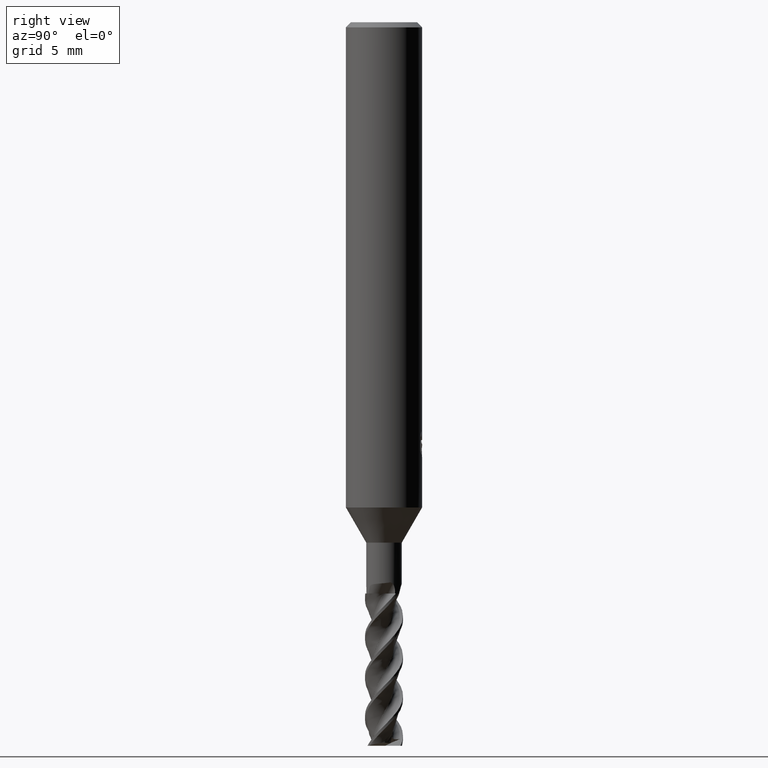
[diagram: clean part render]
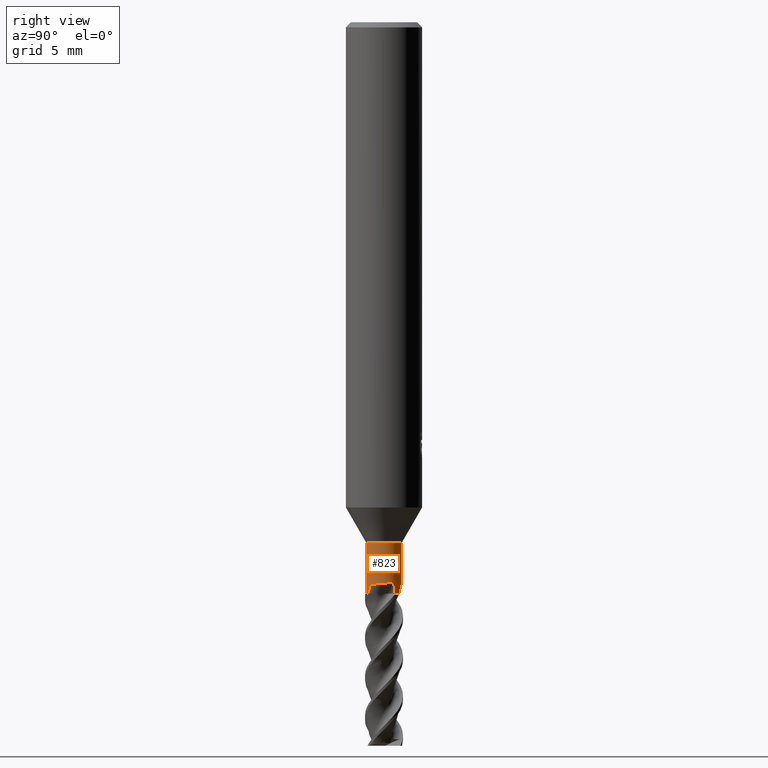
[diagram: same view with one face highlighted and labeled with its STEP entity id]
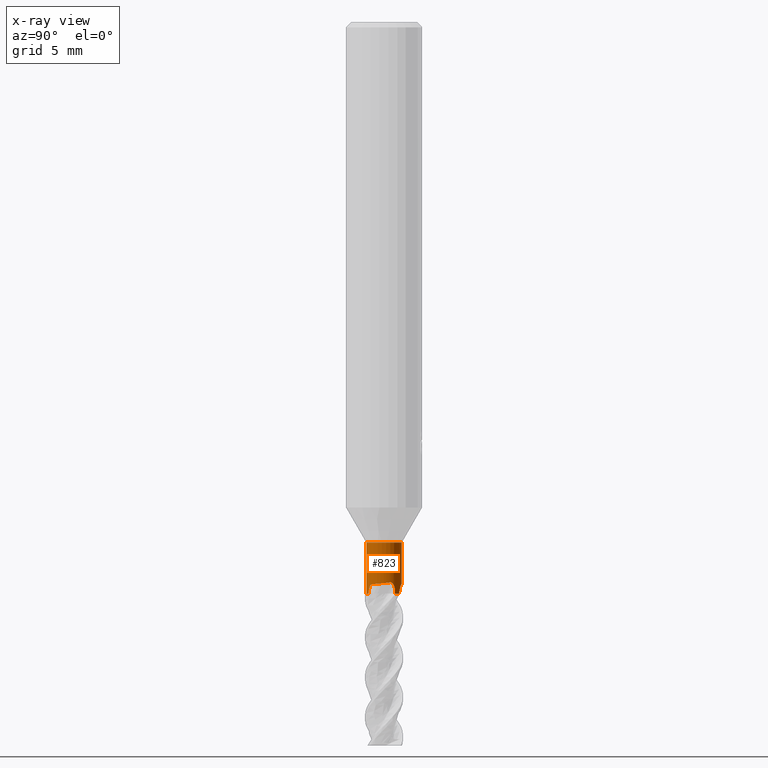
[diagram: x-ray of the same camera — body ghosted, the highlighted face saturated]
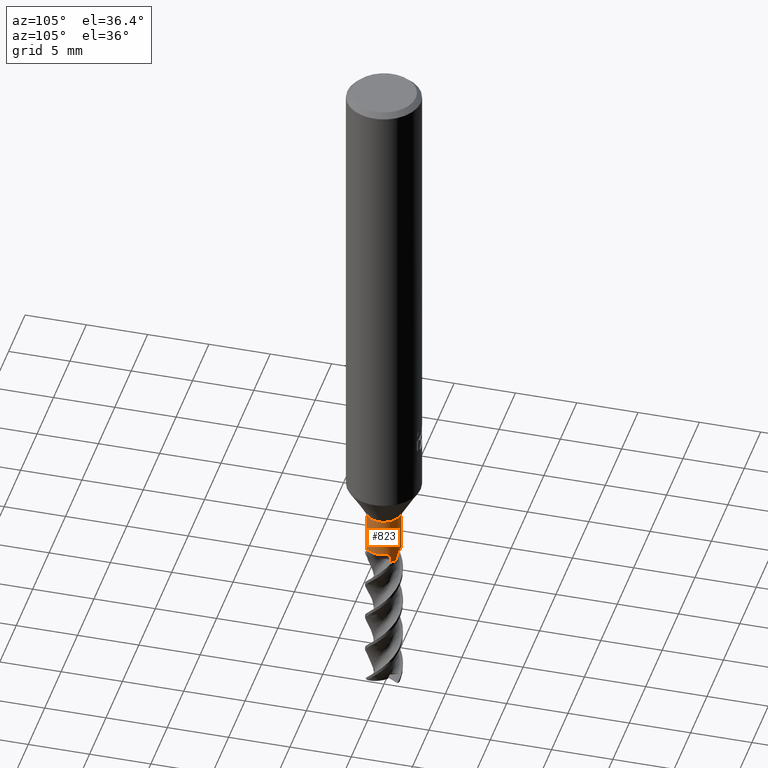
[diagram: same view with one face highlighted and labeled with its STEP entity id]
A machine part, right view. The second image highlights one B-rep face of the part: STEP entity #823.
The next image is the same camera in x-ray: the body ghosted, the highlighted face saturated — about 0% of this face is hidden behind the body in this view.
A second angle (auxiliary view) of the same face is appended — the face is thin or edge-on in the first view.
In plain terms, the highlighted cylindrical surface (edge-blend (fillet) strip) has radius 1.4 mm, axis along (-0, -0, 1).
Its self-contained STEP definition (entity closure, byte-faithful):
#447=VERTEX_POINT('',#1290);
#475=VERTEX_POINT('',#1321);
#515=EDGE_CURVE('',#677,#447,#1363,.T.);
#521=VERTEX_POINT('',#1369);
#549=EDGE_CURVE('',#475,#447,#1398,.T.);
#567=VERTEX_POINT('',#1420);
#617=VERTEX_POINT('',#1474);
#641=EDGE_CURVE('',#567,#521,#1502,.T.);
#677=VERTEX_POINT('',#1541);
#713=EDGE_CURVE('',#567,#1149,#1583,.T.);
#743=VERTEX_POINT('',#1617);
#823=ADVANCED_FACE('',(#1706),#1707,.T.);
#831=EDGE_CURVE('',#743,#1071,#1716,.T.);
#989=EDGE_CURVE('',#475,#617,#1889,.T.);
#1011=EDGE_CURVE('',#1149,#1211,#1912,.T.);
#1021=EDGE_CURVE('',#743,#617,#1923,.T.);
#1047=EDGE_CURVE('',#1211,#1071,#1950,.T.);
#1071=VERTEX_POINT('',#1976);
#1149=VERTEX_POINT('',#2062);
#1175=EDGE_CURVE('',#1255,#521,#2089,.T.);
#1211=VERTEX_POINT('',#2127);
#1225=EDGE_CURVE('',#677,#1255,#2142,.T.);
#1255=VERTEX_POINT('',#2174);
#1290=CARTESIAN_POINT('',(1.71438766503364E-016,-1.39995,-41.0));
#1321=CARTESIAN_POINT('',(0.0,1.39995,-41.0));
#1363=LINE('',#2598,#2599);
#1369=CARTESIAN_POINT('',(0.20369277233038,-1.3850520773604,-45.0));
#1398=CIRCLE('',#2756,1.39995);
#1420=CARTESIAN_POINT('',(0.642595380793867,-1.24375688101911,-44.9999999999999));
#1474=CARTESIAN_POINT('',(-8.96077992037318E-010,1.39995,-44.2514426924455));
#1502=CIRCLE('',#3768,1.39995);
#1541=CARTESIAN_POINT('',(-4.46744350979881E-013,-1.39995,-44.2402134252292));
#1583=B_SPLINE_CURVE_WITH_KNOTS('',3,(#4610,#4611,#4612,#4613,#4614,#4615,#4616,#4617,#4618,#4619,#4620,#4621,#4622,#4623,#4624,#4625,#4626,#4627,#4628,#4629,#4630,#4631,#4632,#4633,#4634,#4635,#4636,#4637,#4638,#4639,#4640,#4641),.UNSPECIFIED.,.F.,.F.,(4,2,2,2,2,2,2,2,2,2,2,2,2,2,2,4),(0.0,0.604544265165818,0.687820246129711,0.735294404398273,0.750041314345388,0.759016662786084,0.767126784247741,0.777516246254212,0.798971651034958,0.901886293012141,1.0087914266969,1.18248374242008,1.56498173539172,2.10436022630583,2.38841720143706,2.669766066115),.UNSPECIFIED.);
#1617=CARTESIAN_POINT('',(0.755827364697412,1.17838236463152,-45.0));
#1706=FACE_OUTER_BOUND('',#5680,.T.);
#1707=CYLINDRICAL_SURFACE('',#5681,1.39995);
#1716=CIRCLE('',#5693,1.39995);
#1889=LINE('',#6880,#6881);
#1912=B_SPLINE_CURVE_WITH_KNOTS('',3,(#7035,#7036,#7037,#7038,#7039,#7040,#7041,#7042,#7043,#7044,#7045,#7046,#7047,#7048),.UNSPECIFIED.,.F.,.F.,(4,2,2,2,2,2,4),(0.0,0.13537512040635,0.251991808754884,0.380470986666979,0.563097470364922,0.779782840041623,1.0083868302251),.UNSPECIFIED.);
#1923=B_SPLINE_CURVE_WITH_KNOTS('',3,(#7066,#7067,#7068,#7069,#7070,#7071,#7072,#7073,#7074,#7075,#7076,#7077,#7078,#7079,#7080,#7081,#7082,#7083,#7084,#7085,#7086,#7087,#7088,#7089,#7090,#7091,#7092,#7093,#7094,#7095,#7096,#7097),.UNSPECIFIED.,.F.,.F.,(4,2,2,2,2,2,2,2,2,2,2,2,2,2,2,4),(0.0,0.60454426516473,0.687820246145945,0.735294404417894,0.750041314374863,0.759016662787722,0.767126784217907,0.777516246192748,0.798971650912468,0.901886292598378,1.00879142598082,1.1824837412122,1.56498173310004,2.104360222484,2.38841719680812,2.6697660606866),.UNSPECIFIED.);
#1950=B_SPLINE_CURVE_WITH_KNOTS('',3,(#7225,#7226,#7227,#7228),.UNSPECIFIED.,.F.,.F.,(4,4),(0.0,0.194408300201322),.UNSPECIFIED.);
#1976=CARTESIAN_POINT('',(1.09764389839333,0.868929154085581,-44.9999999999999));
#2062=CARTESIAN_POINT('',(1.35149706717572,0.365124197931925,-44.1496344412643));
#2089=B_SPLINE_CURVE_WITH_KNOTS('',3,(#9086,#9087,#9088,#9089),.UNSPECIFIED.,.F.,.F.,(4,4),(0.0,0.194408300201245),.UNSPECIFIED.);
#2127=CARTESIAN_POINT('',(1.09988797566894,0.866086856775276,-44.8056240611084));
#2142=B_SPLINE_CURVE_WITH_KNOTS('',3,(#9383,#9384,#9385,#9386,#9387,#9388,#9389,#9390,#9391,#9392,#9393,#9394,#9395,#9396),.UNSPECIFIED.,.F.,.F.,(4,2,2,2,2,2,4),(0.0,0.135375120406103,0.251991808754468,0.380470986666678,0.563097470364816,0.779782840041578,1.00838683022514),.UNSPECIFIED.);
#2174=CARTESIAN_POINT('',(0.200109232016733,-1.38557435663398,-44.8056240611083));
#2598=CARTESIAN_POINT('',(1.71443924449759E-016,-1.39995,-43.0));
#2599=VECTOR('',#9529,1.0);
#2756=AXIS2_PLACEMENT_3D('',#9548,#9549,#9550);
#3768=AXIS2_PLACEMENT_3D('',#9677,#9678,#9679);
#4610=CARTESIAN_POINT('',(0.642595380793868,-1.24375688101911,-44.9999999999999));
#4611=CARTESIAN_POINT('',(0.703941887646372,-1.21206179451719,-44.8106848550864));
#4612=CARTESIAN_POINT('',(0.764115349089939,-1.17451301559422,-44.6201460266032));
#4613=CARTESIAN_POINT('',(0.818883542368767,-1.13549814095578,-44.487726680366));
#4614=CARTESIAN_POINT('',(0.825946309077227,-1.13037921476854,-44.4715248259632));
#4615=CARTESIAN_POINT('',(0.837541657044938,-1.12178938671197,-44.4471739048627));
#4616=CARTESIAN_POINT('',(0.841930024438714,-1.11850197485234,-44.4384019099969));
#4617=CARTESIAN_POINT('',(0.847911400690292,-1.11396114250431,-44.4272089972408));
#4618=CARTESIAN_POINT('',(0.849348873103523,-1.11286560899928,-44.4245730488306));
#4619=CARTESIAN_POINT('',(0.851693794075986,-1.11107107412463,-44.4203670670368));
#4620=CARTESIAN_POINT('',(0.852588805240469,-1.11038445113824,-44.4187830665759));
#4621=CARTESIAN_POINT('',(0.854307677821527,-1.10906242098322,-44.4157835404673));
#4622=CARTESIAN_POINT('',(0.855130224841868,-1.10842834654672,-44.4143662423285));
#4623=CARTESIAN_POINT('',(0.857021924433061,-1.10696667793345,-44.4111497019554));
#4624=CARTESIAN_POINT('',(0.85809560338679,-1.10613463356791,-44.4093547423703));
#4625=CARTESIAN_POINT('',(0.861422190373662,-1.10354876245484,-44.4038921850746));
#4626=CARTESIAN_POINT('',(0.863713610633661,-1.10175664884612,-44.400265445579));
#4627=CARTESIAN_POINT('',(0.877309590636018,-1.09105129680437,-44.3796119961733));
#4628=CARTESIAN_POINT('',(0.889497905947747,-1.08119464927619,-44.3644695663906));
#4629=CARTESIAN_POINT('',(0.917722924389126,-1.05735471282139,-44.3376904870823));
#4630=CARTESIAN_POINT('',(0.932873956962299,-1.04406263475825,-44.3271729861888));
#4631=CARTESIAN_POINT('',(0.974299696869827,-1.00589064113153,-44.3045879520104));
#4632=CARTESIAN_POINT('',(1.00186886944473,-0.978503817771137,-44.2954527430974));
#4633=CARTESIAN_POINT('',(1.08186683356926,-0.892174642865521,-44.2732777160891));
#4634=CARTESIAN_POINT('',(1.15016668200924,-0.808153343582705,-44.2623397077237));
#4635=CARTESIAN_POINT('',(1.3028187093489,-0.542778541784633,-44.2356073122207));
#4636=CARTESIAN_POINT('',(1.36162743493953,-0.371640770987858,-44.2225908176041));
#4637=CARTESIAN_POINT('',(1.39957886665729,-0.0999673162670141,-44.1988611059876));
#4638=CARTESIAN_POINT('',(1.40312632075286,-0.00522533998656032,-44.1901947678378));
#4639=CARTESIAN_POINT('',(1.39115627527688,0.182497997912518,-44.171240831026));
#4640=CARTESIAN_POINT('',(1.3758520404185,0.274974941609861,-44.1610279107858));
#4641=CARTESIAN_POINT('',(1.35149706717573,0.365124197931924,-44.1496344412643));
#5680=EDGE_LOOP('',(#9936,#9937,#9938,#9939,#9940,#9941,#9942,#9943,#9944,#9945,#9946));
#5681=AXIS2_PLACEMENT_3D('',#9947,#9948,#9949);
#5693=AXIS2_PLACEMENT_3D('',#9959,#9960,#9961);
#6880=CARTESIAN_POINT('',(-1.71433608556968E-016,1.39995,-43.0));
#6881=VECTOR('',#10121,1.0);
#7035=CARTESIAN_POINT('',(1.35149706718078,0.365124197913205,-44.1496344415342));
#7036=CARTESIAN_POINT('',(1.34041267496217,0.406152767535684,-44.134466647657));
#7037=CARTESIAN_POINT('',(1.32700077139201,0.448282594287609,-44.1263165443476));
#7038=CARTESIAN_POINT('',(1.29763019383161,0.52680265803664,-44.129617872066));
#7039=CARTESIAN_POINT('',(1.28304244707816,0.56118067745317,-44.138441057534));
#7040=CARTESIAN_POINT('',(1.25140156107407,0.628796899860941,-44.1713676358354));
#7041=CARTESIAN_POINT('',(1.23504187454519,0.659924820610932,-44.1961246322914));
#7042=CARTESIAN_POINT('',(1.19804567046286,0.725606541655672,-44.2672834805996));
#7043=CARTESIAN_POINT('',(1.17851809675396,0.756168425522954,-44.3184189836009));
#7044=CARTESIAN_POINT('',(1.1432954648772,0.808648131404084,-44.436047162935));
#7045=CARTESIAN_POINT('',(1.12822713468008,0.829012202903728,-44.5060227817222));
#7046=CARTESIAN_POINT('',(1.10688161206579,0.857324003401815,-44.6513225948866));
#7047=CARTESIAN_POINT('',(1.10081239493008,0.864912889497041,-44.7286486200827));
#7048=CARTESIAN_POINT('',(1.0998879757308,0.866086856696708,-44.8056240611087));
#7066=CARTESIAN_POINT('',(0.755827364697412,1.17838236463152,-45.0));
#7067=CARTESIAN_POINT('',(0.697705361185467,1.2156624547482,-44.8106848550868));
#7068=CARTESIAN_POINT('',(0.635100434037146,1.24899981152948,-44.62014602661));
#7069=CARTESIAN_POINT('',(0.573928464835953,1.27692302090906,-44.487726680371));
#7070=CARTESIAN_POINT('',(0.565963961362163,1.28048009320657,-44.4715248259652));
#7071=CARTESIAN_POINT('',(0.552727278065501,1.28622704508477,-44.4471739048617));
#7072=CARTESIAN_POINT('',(0.547686112185611,1.28838377679904,-44.4384019099962));
#7073=CARTESIAN_POINT('',(0.540762947891273,1.29129338440884,-44.4272089972388));
#7074=CARTESIAN_POINT('',(0.539095451839125,1.2919905052832,-44.4245730488295));
#7075=CARTESIAN_POINT('',(0.536368878568132,1.29312399897595,-44.4203670670429));
#7076=CARTESIAN_POINT('',(0.53532674003473,1.29355578988876,-44.4187830665786));
#7077=CARTESIAN_POINT('',(0.533322392042243,1.29438336213361,-44.4157835404653));
#7078=CARTESIAN_POINT('',(0.532361993962735,1.29477867153055,-44.4143662423273));
#7079=CARTESIAN_POINT('',(0.53015030201633,1.29568609712614,-44.4111497019545));
#7080=CARTESIAN_POINT('',(0.528892890981991,1.29619990819274,-44.4093547423697));
#7081=CARTESIAN_POINT('',(0.524990167413682,1.29778788147475,-44.4038921850739));
#7082=CARTESIAN_POINT('',(0.522292441372101,1.29887625282628,-44.4002654455784));
#7083=CARTESIAN_POINT('',(0.506223344546306,1.30529804087679,-44.3796119961728));
#7084=CARTESIAN_POINT('',(0.49159307973493,1.31092510780197,-44.3644695663902));
#7085=CARTESIAN_POINT('',(0.456834579919839,1.32344872256707,-44.337690487082));
#7086=CARTESIAN_POINT('',(0.437747786361534,1.32992386263741,-44.3271729861885));
#7087=CARTESIAN_POINT('',(0.383977000213776,1.34671360895458,-44.3045879520101));
#7088=CARTESIAN_POINT('',(0.346474729167321,1.35689580108556,-44.2954527430971));
#7089=CARTESIAN_POINT('',(0.231712488548187,1.38301148281578,-44.2732777160887));
#7090=CARTESIAN_POINT('',(0.124797984689761,1.400150236998,-44.2623397077234));
#7091=CARTESIAN_POINT('',(-0.18134934886199,1.39966336971385,-44.2356073122204));
#7092=CARTESIAN_POINT('',(-0.358963368714356,1.36502433464085,-44.2225908176038));
#7093=CARTESIAN_POINT('',(-0.613215197894861,1.26205451125774,-44.1988611059873));
#7094=CARTESIAN_POINT('',(-0.697037883205858,1.21775570848315,-44.1901947678375));
#7095=CARTESIAN_POINT('',(-0.853626039971101,1.11352767606716,-44.1712408310258));
#7096=CARTESIAN_POINT('',(-0.926061305047874,1.05403534804579,-44.1610279107856));
#7097=CARTESIAN_POINT('',(-0.991955364533333,0.987868694348363,-44.1496344412642));
#7225=CARTESIAN_POINT('',(1.09988797566894,0.866086856775273,-44.8056240611084));
#7226=CARTESIAN_POINT('',(1.09910988804691,0.867074990024034,-44.8704146217533));
#7227=CARTESIAN_POINT('',(1.09836154500186,0.868022612490847,-44.9352075312885));
#7228=CARTESIAN_POINT('',(1.09764389839333,0.868929154085581,-44.9999999999999));
#9086=CARTESIAN_POINT('',(0.200109232016735,-1.38557435663398,-44.8056240611083));
#9087=CARTESIAN_POINT('',(0.201354024323504,-1.38539457961131,-44.8704146217532));
#9088=CARTESIAN_POINT('',(0.202548860975484,-1.38522030675696,-44.9352075312885));
#9089=CARTESIAN_POINT('',(0.203692772330376,-1.3850520773604,-44.9999999999999));
#9383=CARTESIAN_POINT('',(-0.359541702661136,-1.35299289227532,-44.1496344415341));
#9384=CARTESIAN_POINT('',(-0.3184677229779,-1.36390781183971,-44.1344666476569));
#9385=CARTESIAN_POINT('',(-0.275276270968576,-1.37335767601083,-44.1263165443475));
#9386=CARTESIAN_POINT('',(-0.192590612274869,-1.38718204159423,-44.1296178720659));
#9387=CARTESIAN_POINT('',(-0.155524500751598,-1.39173769203002,-44.138441057534));
#9388=CARTESIAN_POINT('',(-0.0811466914365506,-1.39814399215611,-44.1713676358353));
#9389=CARTESIAN_POINT('',(-0.0460092780356213,-1.39954004839916,-44.1961246322914));
#9390=CARTESIAN_POINT('',(0.0293708629945387,-1.40034125634263,-44.2672834805996));
#9391=CARTESIAN_POINT('',(0.0656020176655557,-1.3987108233701,-44.3184189836008));
#9392=CARTESIAN_POINT('',(0.128662092080161,-1.39444698231724,-44.436047162935));
#9393=CARTESIAN_POINT('',(0.153832060421894,-1.39157946132374,-44.5060227817221));
#9394=CARTESIAN_POINT('',(0.189023560187253,-1.38724959673175,-44.6513225948865));
#9395=CARTESIAN_POINT('',(0.198630336900001,-1.38578794355876,-44.7286486200826));
#9396=CARTESIAN_POINT('',(0.200109231917763,-1.38557435664827,-44.8056240611086));
#9529=DIRECTION('',(-0.0,-0.0,1.0));
#9548=CARTESIAN_POINT('',(0.0,0.0,-41.0));
#9549=DIRECTION('',(0.0,0.0,-1.0));
#9550=DIRECTION('',(0.0,1.0,0.0));
#9677=CARTESIAN_POINT('',(0.0,0.0,-45.0));
#9678=DIRECTION('',(0.0,0.0,-1.0));
#9679=DIRECTION('',(0.0,1.0,0.0));
#9936=ORIENTED_EDGE('',*,*,#989,.F.);
#9937=ORIENTED_EDGE('',*,*,#549,.T.);
#9938=ORIENTED_EDGE('',*,*,#515,.F.);
#9939=ORIENTED_EDGE('',*,*,#1225,.T.);
#9940=ORIENTED_EDGE('',*,*,#1175,.T.);
#9941=ORIENTED_EDGE('',*,*,#641,.F.);
#9942=ORIENTED_EDGE('',*,*,#713,.T.);
#9943=ORIENTED_EDGE('',*,*,#1011,.T.);
#9944=ORIENTED_EDGE('',*,*,#1047,.T.);
#9945=ORIENTED_EDGE('',*,*,#831,.F.);
#9946=ORIENTED_EDGE('',*,*,#1021,.T.);
#9947=CARTESIAN_POINT('',(0.0,0.0,-43.0));
#9948=DIRECTION('',(-0.0,-0.0,1.0));
#9949=DIRECTION('',(0.0,1.0,0.0));
#9959=CARTESIAN_POINT('',(0.0,0.0,-45.0));
#9960=DIRECTION('',(0.0,0.0,-1.0));
#9961=DIRECTION('',(0.0,1.0,0.0));
#10121=DIRECTION('',(0.0,0.0,-1.0));